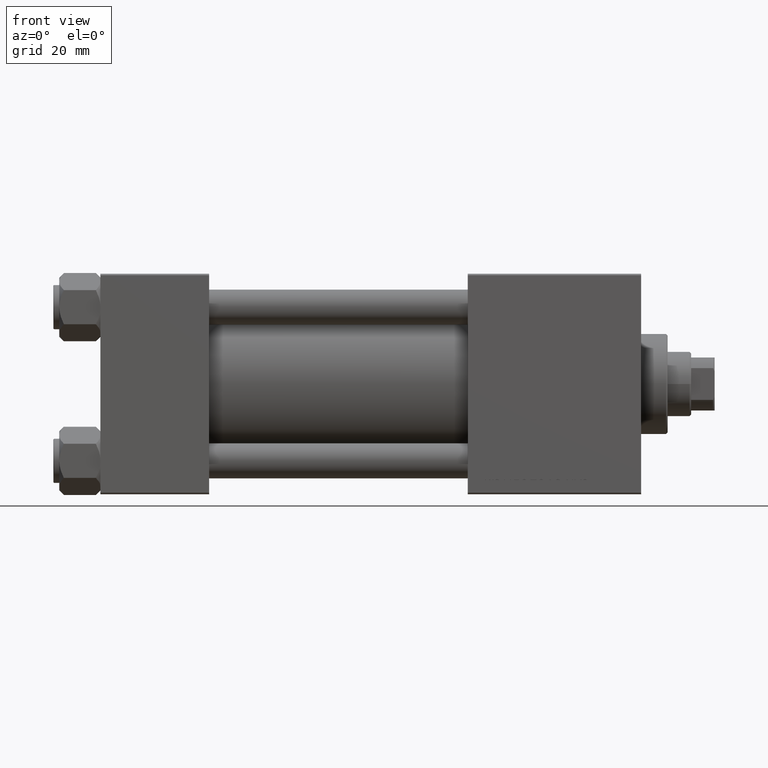
[diagram: clean part render]
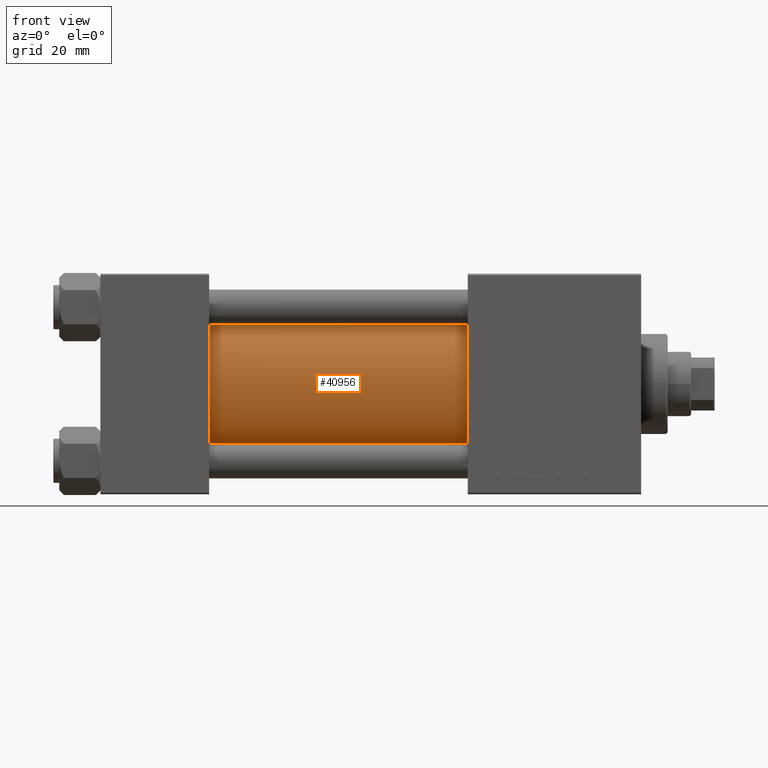
[diagram: same view with one face highlighted and labeled with its STEP entity id]
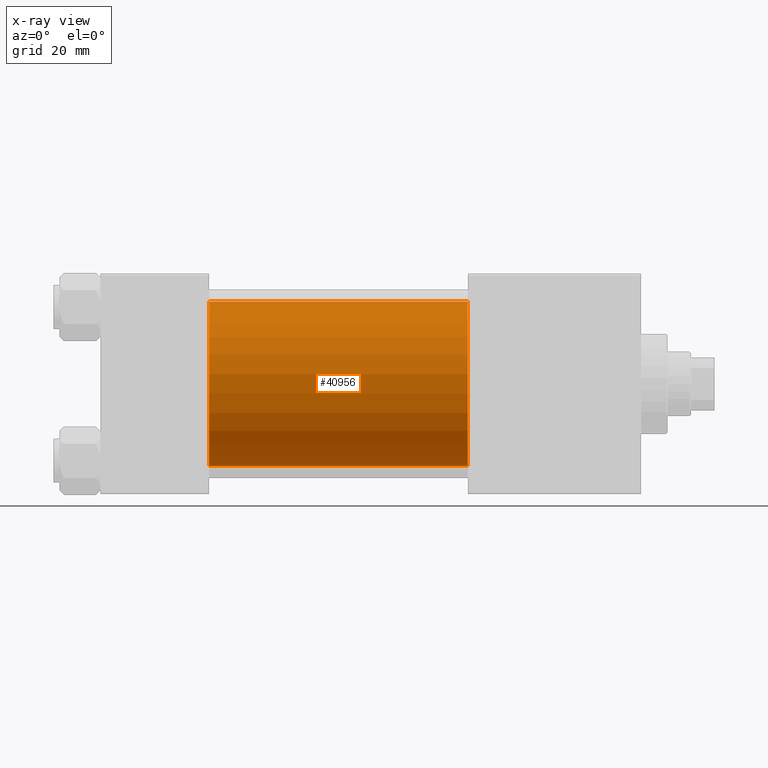
[diagram: x-ray of the same camera — body ghosted, the highlighted face saturated]
A machine part, front view. The second image highlights one B-rep face of the part: STEP entity #40956.
The next image is the same camera in x-ray: the body ghosted, the highlighted face saturated — about 2% of this face is hidden behind the body in this view.
In plain terms, the highlighted cylindrical surface (partial cylindrical patch) has radius 28 mm, axis along (-1, -0, -0).
Its self-contained STEP definition (entity closure, byte-faithful):
#727 = VECTOR ( 'NONE', #35199, 1000.000000000000000 ) ;
#3693 = VERTEX_POINT ( 'NONE', #28680 ) ;
#3767 = VERTEX_POINT ( 'NONE', #45924 ) ;
#4569 = VERTEX_POINT ( 'NONE', #26754 ) ;
#5753 = AXIS2_PLACEMENT_3D ( 'NONE', #26969, #15220, #26218 ) ;
#6989 = FACE_OUTER_BOUND ( 'NONE', #36280, .T. ) ;
#11433 = ORIENTED_EDGE ( 'NONE', *, *, #19577, .F. ) ;
#14526 = CIRCLE ( 'NONE', #26780, 28.00000000000000000 ) ;
#15220 = DIRECTION ( 'NONE',  ( 1.000000000000000000, 0.000000000000000000, 0.000000000000000000 ) ) ;
#16519 = EDGE_CURVE ( 'NONE', #18748, #3767, #14526, .T. ) ;
#18748 = VERTEX_POINT ( 'NONE', #24310 ) ;
#19398 = CARTESIAN_POINT ( 'NONE',  ( 37.00000000000000711, -2.602085213965210642E-15, 0.000000000000000000 ) ) ;
#19577 = EDGE_CURVE ( 'NONE', #4569, #3767, #46323, .T. ) ;
#20995 = ORIENTED_EDGE ( 'NONE', *, *, #33082, .T. ) ;
#23497 = CARTESIAN_POINT ( 'NONE',  ( 125.0000000000000000, -2.602085213965210642E-15, 28.00000000000000000 ) ) ;
#23939 = DIRECTION ( 'NONE',  ( -1.000000000000000000, -0.000000000000000000, -0.000000000000000000 ) ) ;
#23944 = ORIENTED_EDGE ( 'NONE', *, *, #38200, .F. ) ;
#24310 = CARTESIAN_POINT ( 'NONE',  ( 37.00000000000000711, -2.602085213965210642E-15, 28.00000000000000000 ) ) ;
#26122 = DIRECTION ( 'NONE',  ( 0.000000000000000000, 0.000000000000000000, 1.000000000000000000 ) ) ;
#26218 = DIRECTION ( 'NONE',  ( 0.000000000000000000, 0.000000000000000000, -1.000000000000000000 ) ) ;
#26754 = CARTESIAN_POINT ( 'NONE',  ( 125.0000000000000000, 8.269258236473784371E-16, -28.00000000000000000 ) ) ;
#26780 = AXIS2_PLACEMENT_3D ( 'NONE', #19398, #35425, #34928 ) ;
#26969 = CARTESIAN_POINT ( 'NONE',  ( 125.0000000000000000, -2.602085213965210642E-15, 0.000000000000000000 ) ) ;
#27756 = CIRCLE ( 'NONE', #5753, 28.00000000000000000 ) ;
#28680 = CARTESIAN_POINT ( 'NONE',  ( 125.0000000000000000, -2.602085213965210642E-15, 28.00000000000000000 ) ) ;
#31074 = CARTESIAN_POINT ( 'NONE',  ( 125.0000000000000000, 8.269258236473784371E-16, -28.00000000000000000 ) ) ;
#33082 = EDGE_CURVE ( 'NONE', #3693, #18748, #35698, .T. ) ;
#33453 = VECTOR ( 'NONE', #23939, 1000.000000000000000 ) ;
#34928 = DIRECTION ( 'NONE',  ( 0.000000000000000000, 0.000000000000000000, 1.000000000000000000 ) ) ;
#35154 = AXIS2_PLACEMENT_3D ( 'NONE', #49514, #45432, #26122 ) ;
#35199 = DIRECTION ( 'NONE',  ( -1.000000000000000000, -0.000000000000000000, -0.000000000000000000 ) ) ;
#35425 = DIRECTION ( 'NONE',  ( 1.000000000000000000, -0.000000000000000000, 0.000000000000000000 ) ) ;
#35698 = LINE ( 'NONE', #23497, #727 ) ;
#36280 = EDGE_LOOP ( 'NONE', ( #11433, #23944, #20995, #44465 ) ) ;
#38200 = EDGE_CURVE ( 'NONE', #3693, #4569, #27756, .T. ) ;
#40956 = ADVANCED_FACE ( 'NONE', ( #6989 ), #49261, .T. ) ;
#44465 = ORIENTED_EDGE ( 'NONE', *, *, #16519, .T. ) ;
#45432 = DIRECTION ( 'NONE',  ( -1.000000000000000000, -0.000000000000000000, -0.000000000000000000 ) ) ;
#45924 = CARTESIAN_POINT ( 'NONE',  ( 37.00000000000000711, 8.269258236473784371E-16, -28.00000000000000000 ) ) ;
#46323 = LINE ( 'NONE', #31074, #33453 ) ;
#49261 = CYLINDRICAL_SURFACE ( 'NONE', #35154, 28.00000000000000000 ) ;
#49514 = CARTESIAN_POINT ( 'NONE',  ( 125.0000000000000000, -2.602085213965210642E-15, 0.000000000000000000 ) ) ;